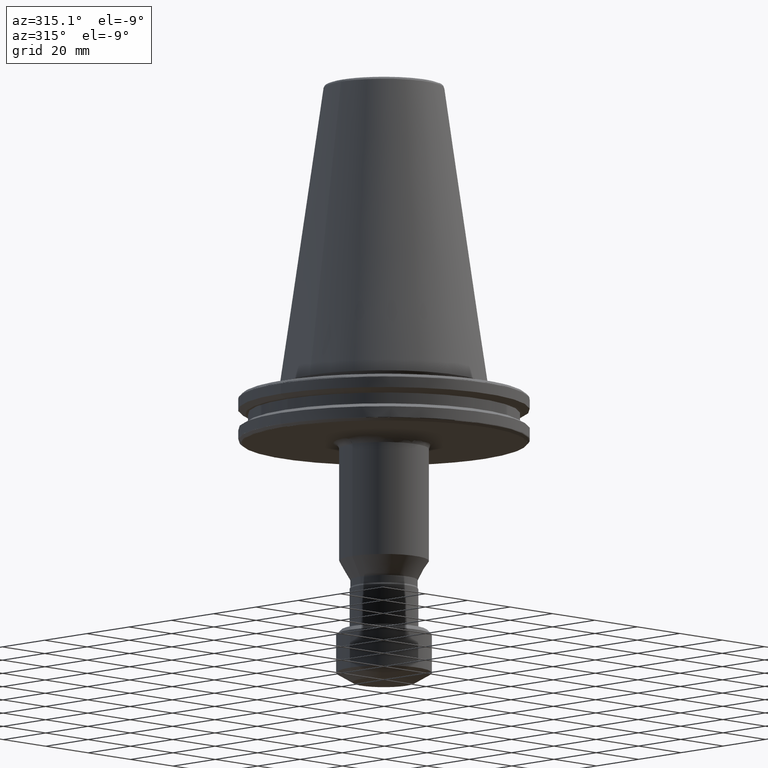
[diagram: clean part render]
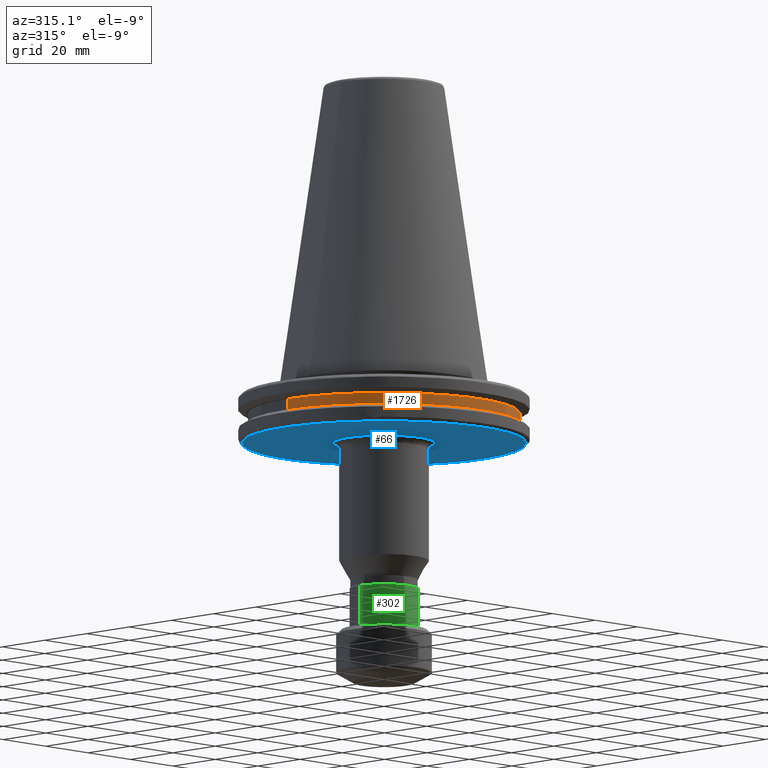
[diagram: same view with three faces highlighted in distinct colors, each labeled with its STEP entity id]
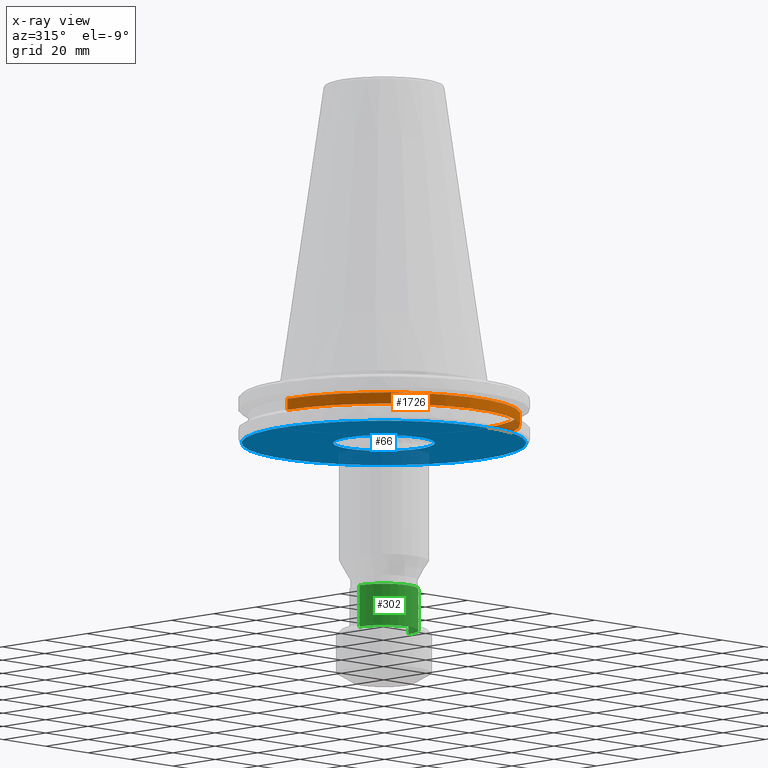
[diagram: x-ray of the same camera — body ghosted, the three highlighted faces saturated]
A machine part, auxiliary view with three faces highlighted in distinct colors.
The next image is the same camera in x-ray (body ghosted, the three faces saturated) — at least one of them is partly hidden behind the body in this view.
Their STEP definitions:

[orange] entity #1726 — the highlighted cylindrical surface (partial cylindrical patch) has radius 45.5 mm, axis along (0, 0, 1).
#36 = ORIENTED_EDGE ( 'NONE', *, *, #3107, .T. ) ;
#37 = DIRECTION ( 'NONE',  ( 0.0000000000000000000, 0.0000000000000000000, 1.000000000000000000 ) ) ;
#226 = DIRECTION ( 'NONE',  ( 1.000000000000000000, 0.0000000000000000000, 0.0000000000000000000 ) ) ;
#232 = CIRCLE ( 'NONE', #1699, 45.50000000000000000 ) ;
#445 = VECTOR ( 'NONE', #37, 1000.000000000000000 ) ;
#471 = AXIS2_PLACEMENT_3D ( 'NONE', #2727, #1133, #3239 ) ;
#617 = CARTESIAN_POINT ( 'NONE',  ( -45.50000000000000000, 5.572142936120457100E-015, -12.99999999999999800 ) ) ;
#725 = CARTESIAN_POINT ( 'NONE',  ( -45.50000000000000000, 5.572142936120457100E-015, -9.199999999999999300 ) ) ;
#772 = CARTESIAN_POINT ( 'NONE',  ( -45.50000000000000000, 5.572142936120457100E-015, 109.4760732604896600 ) ) ;
#858 = CARTESIAN_POINT ( 'NONE',  ( 45.50000000000000000, 0.0000000000000000000, 109.4760732604896600 ) ) ;
#1119 = DIRECTION ( 'NONE',  ( -0.0000000000000000000, -0.0000000000000000000, -1.000000000000000000 ) ) ;
#1133 = DIRECTION ( 'NONE',  ( 0.0000000000000000000, 0.0000000000000000000, 1.000000000000000000 ) ) ;
#1293 = DIRECTION ( 'NONE',  ( 0.0000000000000000000, 0.0000000000000000000, 1.000000000000000000 ) ) ;
#1339 = VERTEX_POINT ( 'NONE', #725 ) ;
#1577 = ORIENTED_EDGE ( 'NONE', *, *, #1692, .T. ) ;
#1692 = EDGE_CURVE ( 'NONE', #2887, #1339, #1875, .T. ) ;
#1693 = EDGE_CURVE ( 'NONE', #2616, #2887, #3279, .T. ) ;
#1699 = AXIS2_PLACEMENT_3D ( 'NONE', #3404, #1833, #226 ) ;
#1714 = CYLINDRICAL_SURFACE ( 'NONE', #471, 45.50000000000000000 ) ;
#1726 = ADVANCED_FACE ( 'NONE', ( #3188 ), #1714, .T. ) ;
#1833 = DIRECTION ( 'NONE',  ( 0.0000000000000000000, 0.0000000000000000000, 1.000000000000000000 ) ) ;
#1875 = CIRCLE ( 'NONE', #3056, 45.50000000000000000 ) ;
#1993 = LINE ( 'NONE', #772, #3125 ) ;
#2064 = ORIENTED_EDGE ( 'NONE', *, *, #2868, .F. ) ;
#2508 = ORIENTED_EDGE ( 'NONE', *, *, #1693, .T. ) ;
#2512 = CARTESIAN_POINT ( 'NONE',  ( 45.50000000000000000, 0.0000000000000000000, -12.99999999999999800 ) ) ;
#2616 = VERTEX_POINT ( 'NONE', #2512 ) ;
#2709 = CARTESIAN_POINT ( 'NONE',  ( 0.0000000000000000000, 0.0000000000000000000, -9.199999999999999300 ) ) ;
#2727 = CARTESIAN_POINT ( 'NONE',  ( 0.0000000000000000000, 0.0000000000000000000, 109.4760732604896600 ) ) ;
#2868 = EDGE_CURVE ( 'NONE', #3274, #1339, #1993, .T. ) ;
#2880 = CARTESIAN_POINT ( 'NONE',  ( 45.50000000000000000, 0.0000000000000000000, -9.199999999999999300 ) ) ;
#2887 = VERTEX_POINT ( 'NONE', #2880 ) ;
#2964 = DIRECTION ( 'NONE',  ( 1.000000000000000000, 0.0000000000000000000, 0.0000000000000000000 ) ) ;
#3056 = AXIS2_PLACEMENT_3D ( 'NONE', #2709, #1119, #2964 ) ;
#3107 = EDGE_CURVE ( 'NONE', #3274, #2616, #232, .T. ) ;
#3125 = VECTOR ( 'NONE', #1293, 1000.000000000000000 ) ;
#3140 = EDGE_LOOP ( 'NONE', ( #2064, #36, #2508, #1577 ) ) ;
#3188 = FACE_OUTER_BOUND ( 'NONE', #3140, .T. ) ;
#3239 = DIRECTION ( 'NONE',  ( 1.000000000000000000, 0.0000000000000000000, 0.0000000000000000000 ) ) ;
#3274 = VERTEX_POINT ( 'NONE', #617 ) ;
#3279 = LINE ( 'NONE', #858, #445 ) ;
#3404 = CARTESIAN_POINT ( 'NONE',  ( 0.0000000000000000000, 0.0000000000000000000, -12.99999999999999800 ) ) ;

[blue] entity #66 — the highlighted planar face has unit normal (0, 0, -1).
#1 = CARTESIAN_POINT ( 'NONE',  ( -43.50738066078827900, 19.27117675786805200, -19.10000000000001200 ) ) ;
#11 = CARTESIAN_POINT ( 'NONE',  ( -16.75628663802398300, -2.869557051015598800, -19.10000000000000100 ) ) ;
#13 = CARTESIAN_POINT ( 'NONE',  ( -37.72233470563285400, 29.00609245878207800, -19.10000000000000100 ) ) ;
#17 = CARTESIAN_POINT ( 'NONE',  ( -15.23929593936327500, -7.572712612707428000, -19.10000000000000500 ) ) ;
#22 = CARTESIAN_POINT ( 'NONE',  ( -24.81728438533785700, 40.60144016361300600, -19.10000000000000900 ) ) ;
#26 = CARTESIAN_POINT ( 'NONE',  ( -9.425089607255268100, -14.14825376422930100, -19.10000000000000100 ) ) ;
#28 = CARTESIAN_POINT ( 'NONE',  ( 47.58431457505076200, 0.0000000000000000000, -19.10000000000000500 ) ) ;
#45 = CARTESIAN_POINT ( 'NONE',  ( -3.566247131329177900, -16.62276056159859300, -19.10000000000000500 ) ) ;
#50 = CARTESIAN_POINT ( 'NONE',  ( -39.34331436821108200, -26.77251847610786200, -19.10000000000000900 ) ) ;
#62 = CARTESIAN_POINT ( 'NONE',  ( 3.029438918684569200, -16.72792623648391000, -19.10000000000000900 ) ) ;
#66 = ADVANCED_FACE ( 'NONE', ( #2723, #1291 ), #1438, .T. ) ;
#68 = CARTESIAN_POINT ( 'NONE',  ( -27.57030031731700600, -38.90942616199809800, -19.10000000000000500 ) ) ;
#72 = CARTESIAN_POINT ( 'NONE',  ( 8.878797069425010200, -14.49842495588012200, -19.10000000000000500 ) ) ;
#90 = AXIS2_PLACEMENT_3D ( 'NONE', #370, #2246, #647 ) ;
#133 = CARTESIAN_POINT ( 'NONE',  ( -9.182110065269718300, 14.30713178097664700, -19.10000000000001200 ) ) ;
#139 = CARTESIAN_POINT ( 'NONE',  ( -15.41372478594541600, 7.180910359805224600, -19.10000000000000900 ) ) ;
#140 = CARTESIAN_POINT ( 'NONE',  ( 46.47350782598347500, -10.35808886605157000, -19.10000000000000500 ) ) ;
#147 = CARTESIAN_POINT ( 'NONE',  ( -16.71027858106262800, 3.125317723918708400, -19.10000000000000100 ) ) ;
#149 = CARTESIAN_POINT ( 'NONE',  ( 42.38248318243193300, -21.63374689602388300, -19.10000000000000900 ) ) ;
#162 = ORIENTED_EDGE ( 'NONE', *, *, #1468, .F. ) ;
#164 = CARTESIAN_POINT ( 'NONE',  ( 28.74551016938736200, -37.93038276513787100, -19.10000000000000500 ) ) ;
#168 = CARTESIAN_POINT ( 'NONE',  ( 15.97840023185761600, 5.807325023635518900, -19.10000000000000900 ) ) ;
#171 = CARTESIAN_POINT ( 'NONE',  ( 20.41528033294995800, -42.98237818865658300, -19.10000000000000900 ) ) ;
#177 = CARTESIAN_POINT ( 'NONE',  ( 12.85040064147194400, 11.19117736271898000, -19.10000000000000900 ) ) ;
#187 = CARTESIAN_POINT ( 'NONE',  ( 6.390923916823732400, 15.75301338873084200, -19.10000000000000500 ) ) ;
#201 = CARTESIAN_POINT ( 'NONE',  ( -0.5197252359296659100, 17.00001621349948900, -19.10000000000000500 ) ) ;
#210 = CARTESIAN_POINT ( 'NONE',  ( 20.30816862367795000, 43.03308960635053600, -19.10000000000000500 ) ) ;
#213 = CARTESIAN_POINT ( 'NONE',  ( -6.129270536058141900, 15.85664712819512600, -19.10000000000000500 ) ) ;
#218 = CARTESIAN_POINT ( 'NONE',  ( -43.46452045540239300, -19.39265620129822000, -19.09999999999999800 ) ) ;
#219 = CARTESIAN_POINT ( 'NONE',  ( 32.45423464497587000, 34.79967915309470100, -19.10000000000000500 ) ) ;
#230 = CARTESIAN_POINT ( 'NONE',  ( -47.46455135935227100, -3.382873549468426300, -19.10000000000000900 ) ) ;
#231 = CARTESIAN_POINT ( 'NONE',  ( 42.90142996046747500, 20.62574051018165400, -19.10000000000000900 ) ) ;
#243 = CARTESIAN_POINT ( 'NONE',  ( 15.41372478594150100, -7.180910359809976400, -19.10000000000000100 ) ) ;
#248 = CARTESIAN_POINT ( 'NONE',  ( -46.85478944352901500, 8.300562471110195500, -19.10000000000000500 ) ) ;
#249 = CARTESIAN_POINT ( 'NONE',  ( 46.98556592418497500, 7.525599392336442200, -19.10000000000000100 ) ) ;
#260 = CARTESIAN_POINT ( 'NONE',  ( 16.71027858106262100, -3.125317723918680900, -19.10000000000000100 ) ) ;
#262 = CARTESIAN_POINT ( 'NONE',  ( -43.06388169947629800, 20.26603588022871000, -19.10000000000000100 ) ) ;
#268 = CARTESIAN_POINT ( 'NONE',  ( -16.72792424146346200, -3.029449701395665600, -19.10000000000000100 ) ) ;
#272 = CARTESIAN_POINT ( 'NONE',  ( -36.19195205103963500, 30.95738241492916700, -19.10000000000000900 ) ) ;
#278 = CARTESIAN_POINT ( 'NONE',  ( -14.49842495588400800, -8.878797069413817400, -19.10000000000000100 ) ) ;
#285 = CARTESIAN_POINT ( 'NONE',  ( -24.28919228006430200, 40.91842199131881600, -19.10000000000000900 ) ) ;
#298 = CARTESIAN_POINT ( 'NONE',  ( -8.821883244323116100, -14.54320516734942400, -19.10000000000000500 ) ) ;
#310 = CARTESIAN_POINT ( 'NONE',  ( -3.228799669474590000, -16.69059809660694800, -19.10000000000000100 ) ) ;
#320 = CARTESIAN_POINT ( 'NONE',  ( 3.635329554505266600, -16.61591811502067300, -19.10000000000000500 ) ) ;
#322 = EDGE_CURVE ( 'NONE', #2125, #2264, #1096, .T. ) ;
#331 = CARTESIAN_POINT ( 'NONE',  ( 9.182110065268240400, -14.30713178097820300, -19.10000000000000100 ) ) ;
#370 = CARTESIAN_POINT ( 'NONE',  ( 0.0000000000000000000, 0.0000000000000000000, -19.10000000000000500 ) ) ;
#382 = B_SPLINE_CURVE_WITH_KNOTS ( 'NONE', 3,
 ( #1130, #2726, #3236, #1658, #68, #1931 ),
 .UNSPECIFIED., .F., .F.,
 ( 4, 2, 4 ),
 ( 0.0000000000000000000, 0.5000000000000000000, 1.000000000000000000 ),
 .UNSPECIFIED. ) ;
#391 = CARTESIAN_POINT ( 'NONE',  ( -10.28458922963836600, 13.58694172186861400, -19.10000000000000500 ) ) ;
#401 = CARTESIAN_POINT ( 'NONE',  ( -15.71244586321104300, 6.490634399675370100, -19.10000000000000100 ) ) ;
#405 = CARTESIAN_POINT ( 'NONE',  ( 45.61501663366748000, -13.55419179612029600, -19.10000000000000100 ) ) ;
#414 = CARTESIAN_POINT ( 'NONE',  ( -16.99999999999998900, 1.039981274145734200, -19.09999999999999800 ) ) ;
#416 = CARTESIAN_POINT ( 'NONE',  ( 39.71226124066086500, -26.34633708789625900, -19.10000000000000900 ) ) ;
#425 = CARTESIAN_POINT ( 'NONE',  ( 27.36704069051609500, -38.92761599110558300, -19.10000000000000100 ) ) ;
#429 = CARTESIAN_POINT ( 'NONE',  ( 15.85664712819559500, 6.129270536055612300, -19.10000000000000100 ) ) ;
#432 = CARTESIAN_POINT ( 'NONE',  ( 18.14579602877767800, -44.05578048496933300, -19.10000000000000100 ) ) ;
#447 = CARTESIAN_POINT ( 'NONE',  ( 10.95514690495525300, 13.02276200926030600, -19.10000000000000500 ) ) ;
#460 = CARTESIAN_POINT ( 'NONE',  ( 6.289638318446941800, 15.79372029836359200, -19.10000000000000900 ) ) ;
#465 = CARTESIAN_POINT ( 'NONE',  ( 14.71542401573989700, 45.26810526765248700, -19.09999999999999800 ) ) ;
#469 = CARTESIAN_POINT ( 'NONE',  ( -2.196602693796269700, 16.86107325276852700, -19.10000000000000500 ) ) ;
#475 = CARTESIAN_POINT ( 'NONE',  ( -40.02661726375797700, -25.73250060629115800, -19.10000000000000100 ) ) ;
#477 = CARTESIAN_POINT ( 'NONE',  ( 23.16294830556954000, 41.59993702404469200, -19.10000000000000500 ) ) ;
#481 = CARTESIAN_POINT ( 'NONE',  ( -6.224235666763718200, 15.81961256450059500, -19.10000000000000100 ) ) ;
#485 = VERTEX_POINT ( 'NONE', #2481 ) ;
#494 = CARTESIAN_POINT ( 'NONE',  ( -44.66341859283797800, -16.42788878438595300, -19.10000000000000500 ) ) ;
#495 = CARTESIAN_POINT ( 'NONE',  ( 32.80683798251254800, 34.46745228559307600, -19.10000000000000500 ) ) ;
#507 = CARTESIAN_POINT ( 'NONE',  ( -47.59741484153538200, -0.6777149948083081000, -19.10000000000000500 ) ) ;
#509 = CARTESIAN_POINT ( 'NONE',  ( 44.54555233085104500, 16.75446385730817100, -19.10000000000000100 ) ) ;
#516 = CARTESIAN_POINT ( 'NONE',  ( 15.71244586320983500, -6.490634399676853400, -19.10000000000000900 ) ) ;
#520 = CARTESIAN_POINT ( 'NONE',  ( -46.82244676818312000, 8.481092150350010100, -19.10000000000000100 ) ) ;
#521 = CARTESIAN_POINT ( 'NONE',  ( 47.01629565795806100, 7.330514881585432200, -19.10000000000000500 ) ) ;
#531 = CARTESIAN_POINT ( 'NONE',  ( 16.99999999999999600, -1.039981274146589000, -19.10000000000000900 ) ) ;
#534 = CARTESIAN_POINT ( 'NONE',  ( -41.62449277400573100, 23.06696569450540900, -19.10000000000000100 ) ) ;
#544 = CARTESIAN_POINT ( 'NONE',  ( -16.61591811502702500, -3.635329554490970900, -19.10000000000000100 ) ) ;
#548 = VERTEX_POINT ( 'NONE', #3263 ) ;
#555 = CARTESIAN_POINT ( 'NONE',  ( -32.75192744826207300, 34.53355234439998600, -19.10000000000000900 ) ) ;
#561 = CARTESIAN_POINT ( 'NONE',  ( -14.30713178097942700, -9.182110065264701900, -19.10000000000000100 ) ) ;
#566 = CARTESIAN_POINT ( 'NONE',  ( -23.23964798956468400, 41.53466996820385800, -19.10000000000000100 ) ) ;
#574 = CARTESIAN_POINT ( 'NONE',  ( -7.180910359828097900, -15.41372478593432200, -19.10000000000000500 ) ) ;
#583 = CARTESIAN_POINT ( 'NONE',  ( -3.125312245169746400, -16.71027959509473200, -19.10000000000000100 ) ) ;
#600 = CARTESIAN_POINT ( 'NONE',  ( 5.353849595834401700, -16.13916466441866100, -19.10000000000000500 ) ) ;
#601 = DIRECTION ( 'NONE',  ( -0.0000000000000000000, -0.0000000000000000000, 1.000000000000000000 ) ) ;
#647 = DIRECTION ( 'NONE',  ( 1.000000000000000000, 0.0000000000000000000, 0.0000000000000000000 ) ) ;
#659 = EDGE_CURVE ( 'NONE', #2285, #1589, #2284, .T. ) ;
#672 = CARTESIAN_POINT ( 'NONE',  ( 10.28458922964753300, -13.58694172185755600, -19.10000000000001200 ) ) ;
#673 = CARTESIAN_POINT ( 'NONE',  ( -12.43563423889748200, 11.60602259952191100, -19.10000000000000100 ) ) ;
#674 = CARTESIAN_POINT ( 'NONE',  ( 47.51482365651813200, -3.034128784358036200, -19.10000000000000500 ) ) ;
#679 = CARTESIAN_POINT ( 'NONE',  ( -15.77985774725970300, 6.324345534787863000, -19.10000000000000100 ) ) ;
#681 = CARTESIAN_POINT ( 'NONE',  ( 45.38216414504925200, -14.30848230517228400, -19.10000000000000100 ) ) ;
#686 = AXIS2_PLACEMENT_3D ( 'NONE', #3286, #3293, #1459 ) ;
#690 = CARTESIAN_POINT ( 'NONE',  ( 36.10920679700881000, -31.03933632749681600, -19.10000000000000100 ) ) ;
#697 = CARTESIAN_POINT ( 'NONE',  ( 16.86105197255043800, 2.196717709406118300, -19.10000000000000500 ) ) ;
#704 = CARTESIAN_POINT ( 'NONE',  ( 27.03399514045383300, -39.15911966686261500, -19.10000000000000500 ) ) ;
#713 = CARTESIAN_POINT ( 'NONE',  ( 15.81961256450035300, 6.224235666763978400, -19.10000000000000100 ) ) ;
#715 = CARTESIAN_POINT ( 'NONE',  ( 13.55000000000004000, -45.61430141498812000, -19.10000000000000500 ) ) ;
#723 = CARTESIAN_POINT ( 'NONE',  ( 9.728261501595108400, 13.94273981248317700, -19.10000000000000100 ) ) ;
#731 = CARTESIAN_POINT ( 'NONE',  ( 4.965289126045984600, 16.27518783772485000, -19.10000000000000500 ) ) ;
#741 = CARTESIAN_POINT ( 'NONE',  ( 13.55000000000003800, 45.61430141498812000, -19.10000000000000500 ) ) ;
#749 = CARTESIAN_POINT ( 'NONE',  ( -2.869521108641413400, 16.75629328809212400, -19.10000000000000500 ) ) ;
#758 = CARTESIAN_POINT ( 'NONE',  ( -40.18598509483613400, -25.48248467048885100, -19.09999999999999800 ) ) ;
#759 = CARTESIAN_POINT ( 'NONE',  ( 25.98226908279735200, 39.86687285260243400, -19.10000000000000900 ) ) ;
#763 = CARTESIAN_POINT ( 'NONE',  ( -7.572712612743692300, 15.23929593934310000, -19.10000000000001200 ) ) ;
#769 = CARTESIAN_POINT ( 'NONE',  ( -45.06980572969310100, -15.26566562123094800, -19.10000000000000900 ) ) ;
#770 = CARTESIAN_POINT ( 'NONE',  ( 36.56395844828408300, 30.56583245044275500, -19.10000000000000900 ) ) ;
#777 = CARTESIAN_POINT ( 'NONE',  ( 12.43563423889750100, -11.60602259952283400, -19.10000000000000900 ) ) ;
#780 = CARTESIAN_POINT ( 'NONE',  ( -47.54727111532193400, 1.905664479381692400, -19.10000000000000500 ) ) ;
#782 = CARTESIAN_POINT ( 'NONE',  ( 45.10896982988794000, 15.14909382745818100, -19.10000000000000100 ) ) ;
#792 = CARTESIAN_POINT ( 'NONE',  ( 15.77985774725934900, -6.324345534788301700, -19.10000000000000100 ) ) ;
#796 = CARTESIAN_POINT ( 'NONE',  ( -46.02040231053878500, 12.24696722930733400, -19.10000000000000100 ) ) ;
#797 = CARTESIAN_POINT ( 'NONE',  ( 47.39900545896375700, 4.849328732738546100, -19.10000000000001200 ) ) ;
#812 = CARTESIAN_POINT ( 'NONE',  ( -30.00000000000000700, -36.93598507658064300, -19.10000000000000500 ) ) ;
#813 = CARTESIAN_POINT ( 'NONE',  ( -41.01970147035147100, 24.11775541779884300, -19.09999999999999800 ) ) ;
#817 = CARTESIAN_POINT ( 'NONE',  ( -16.13916466442699300, -5.353849595815638000, -19.10000000000000100 ) ) ;
#821 = CARTESIAN_POINT ( 'NONE',  ( -30.33579890459406100, 36.66664220711905400, -19.10000000000000500 ) ) ;
#826 = CARTESIAN_POINT ( 'NONE',  ( -13.58694172187694200, -10.28458922963193000, -19.10000000000000900 ) ) ;
#832 = CARTESIAN_POINT ( 'NONE',  ( -20.43954638168772700, 42.97566936964385300, -19.10000000000000500 ) ) ;
#843 = CARTESIAN_POINT ( 'NONE',  ( -6.490634399682520900, -15.71244586320758800, -19.10000000000000500 ) ) ;
#862 = CARTESIAN_POINT ( 'NONE',  ( -1.039450471878210000, -16.99996757300099000, -19.09999999999999800 ) ) ;
#872 = CARTESIAN_POINT ( 'NONE',  ( 6.032866341704763400, -15.89380501011270900, -19.10000000000000500 ) ) ;
#915 = CARTESIAN_POINT ( 'NONE',  ( -36.93598507658065000, -30.00000000000000000, -19.10000000000000500 ) ) ;
#935 = CARTESIAN_POINT ( 'NONE',  ( 47.58431457505076200, 0.0000000000000000000, -19.10000000000000500 ) ) ;
#948 = CARTESIAN_POINT ( 'NONE',  ( -13.64631823949578200, 10.14559024918019300, -19.10000000000000500 ) ) ;
#949 = CARTESIAN_POINT ( 'NONE',  ( 47.18039861107993000, -6.200159950546384900, -19.10000000000000500 ) ) ;
#954 = CARTESIAN_POINT ( 'NONE',  ( -16.00929423322481100, 5.745157968230116400, -19.10000000000000900 ) ) ;
#956 = CARTESIAN_POINT ( 'NONE',  ( 45.31099424278791300, -14.53228453996202400, -19.10000000000000500 ) ) ;
#966 = CARTESIAN_POINT ( 'NONE',  ( 33.74831642309442300, -33.54865932858725600, -19.10000000000000500 ) ) ;
#968 = VERTEX_POINT ( 'NONE', #28 ) ;
#969 = CARTESIAN_POINT ( 'NONE',  ( -19.00318548245974900, 43.62510207828989200, -19.09999999999999800 ) ) ;
#970 = CARTESIAN_POINT ( 'NONE',  ( 16.75628663802398700, 2.869557051019495200, -19.10000000000000500 ) ) ;
#973 = CARTESIAN_POINT ( 'NONE',  ( 25.85766165868116000, -39.96557434562789300, -19.10000000000000900 ) ) ;
#976 = CARTESIAN_POINT ( 'NONE',  ( 15.23929593935007500, 7.572712612736301800, -19.10000000000000900 ) ) ;
#986 = CARTESIAN_POINT ( 'NONE',  ( 9.425089607253593000, 14.14825376423097400, -19.09999999999999800 ) ) ;
#995 = B_SPLINE_CURVE_WITH_KNOTS ( 'NONE', 3,
 ( #935, #2524, #674, #2540, #949, #2795, #1213, #3054, #1466, #3320, #1739, #140, #2013, #405, #2282, #681, #2550, #956, #2800, #1223, #3064, #1473, #3327, #1751, #149, #2019, #416, #2295, #690, #2555, #966, #2808, #1230, #3075, #1485, #3333, #1762, #164, #2028, #425, #2311, #704, #2560, #973, #2824, #1238, #3081, #1496, #3345, #1770, #171, #2040, #432, #2316, #715 ),
 .UNSPECIFIED., .F., .F.,
 ( 4, 1, 1, 1, 1, 1, 2, 2, 1, 1, 1, 1, 2, 2, 1, 1, 1, 2, 2, 2, 1, 1, 1, 1, 2, 2, 1, 1, 1, 1, 2, 2, 1, 1, 1, 1, 1, 2, 2, 4 ),
 ( 0.0000000000000000000, 0.06250000000000170700, 0.09375000000000259500, 0.1093750000000030000, 0.1171875000000032200, 0.1210937500000032900, 0.1230468750000033300, 0.1250000000000033600, 0.1875000000000048800, 0.2187500000000055800, 0.2343750000000059400, 0.2421875000000060500, 0.2460937500000060800, 0.2500000000000061100, 0.3125000000000062200, 0.3437500000000062200, 0.3593750000000062700, 0.3671875000000062200, 0.3750000000000061100, 0.5000000000000033300, 0.5625000000000017800, 0.5937500000000011100, 0.6093750000000008900, 0.6171875000000008900, 0.6210937500000010000, 0.6250000000000011100, 0.6874999999999998900, 0.7187499999999994400, 0.7343749999999991100, 0.7421874999999990000, 0.7460937499999990000, 0.7499999999999988900, 0.8124999999999982200, 0.8437499999999980000, 0.8593749999999977800, 0.8671874999999978900, 0.8710937499999978900, 0.8730468749999980000, 0.8749999999999980000, 1.000000000000000000 ),
 .UNSPECIFIED. ) ;
#1003 = CARTESIAN_POINT ( 'NONE',  ( 3.566247131323481100, 16.62276056159971200, -19.10000000000000100 ) ) ;
#1004 = CARTESIAN_POINT ( 'NONE',  ( -16.99999999999998900, 0.0000000000000000000, -19.10000000000000500 ) ) ;
#1007 = CARTESIAN_POINT ( 'NONE',  ( 16.43872634132790400, 44.68369591768216500, -19.10000000000000100 ) ) ;
#1008 = EDGE_CURVE ( 'NONE', #2606, #485, #2881, .T. ) ;
#1011 = CARTESIAN_POINT ( 'NONE',  ( -3.029438918683408800, 16.72792623648390300, -19.09999999999999800 ) ) ;
#1015 = CARTESIAN_POINT ( 'NONE',  ( -40.76709873716008300, -24.56122508915836600, -19.09999999999999800 ) ) ;
#1016 = CARTESIAN_POINT ( 'NONE',  ( 26.63902506833021600, 39.42887053638094100, -19.10000000000000500 ) ) ;
#1019 = CARTESIAN_POINT ( 'NONE',  ( -9.061033282950363700, 14.38413214245038500, -19.09999999999999800 ) ) ;
#1027 = CARTESIAN_POINT ( 'NONE',  ( -45.84282519676454400, -12.90938794936728400, -19.10000000000000100 ) ) ;
#1028 = CARTESIAN_POINT ( 'NONE',  ( 40.03666779867885600, 25.77557849478000000, -19.10000000000000500 ) ) ;
#1041 = CARTESIAN_POINT ( 'NONE',  ( 13.64631823949580400, -10.14559024918140700, -19.10000000000000100 ) ) ;
#1046 = CARTESIAN_POINT ( 'NONE',  ( -47.51765271232140700, 2.520872981461752500, -19.10000000000000100 ) ) ;
#1047 = CARTESIAN_POINT ( 'NONE',  ( 45.23605185881285000, 14.76391406654777100, -19.10000000000000900 ) ) ;
#1055 = CARTESIAN_POINT ( 'NONE',  ( 16.00929423322335100, -5.745157968237549500, -19.10000000000000900 ) ) ;
#1058 = CARTESIAN_POINT ( 'NONE',  ( -44.71911495654299500, 16.31098149367877400, -19.10000000000000500 ) ) ;
#1059 = CARTESIAN_POINT ( 'NONE',  ( 47.58431457505076200, 0.0000000000000000000, -19.10000000000000500 ) ) ;
#1063 = CARTESIAN_POINT ( 'NONE',  ( -16.99999999999998900, 0.0000000000000000000, -19.10000000000000500 ) ) ;
#1066 = CARTESIAN_POINT ( 'NONE',  ( -40.83497819796480900, 24.42921624316422700, -19.10000000000000100 ) ) ;
#1067 = EDGE_LOOP ( 'NONE', ( #162, #3242, #1178, #2756, #2469, #2849, #2128 ) ) ;
#1075 = CARTESIAN_POINT ( 'NONE',  ( -15.89380501011531500, -6.032866341698904100, -19.10000000000000500 ) ) ;
#1085 = CARTESIAN_POINT ( 'NONE',  ( -29.36703163550929200, 37.44204003264795200, -19.10000000000000100 ) ) ;
#1096 = CIRCLE ( 'NONE', #2979, 47.58431457505076200 ) ;
#1098 = CARTESIAN_POINT ( 'NONE',  ( -11.60602259952788300, -12.43563423889056500, -19.10000000000001200 ) ) ;
#1099 = CARTESIAN_POINT ( 'NONE',  ( -37.53420115874772700, -29.26347665721688100, -19.10000000000000500 ) ) ;
#1104 = CARTESIAN_POINT ( 'NONE',  ( -19.28098364266295700, 43.50329362521162600, -19.10000000000000900 ) ) ;
#1109 = CARTESIAN_POINT ( 'NONE',  ( -6.324345534790001700, -15.77985774725867300, -19.10000000000000100 ) ) ;
#1123 = CARTESIAN_POINT ( 'NONE',  ( 1.296190649269235000, -16.96455228150933400, -19.10000000000000500 ) ) ;
#1130 = CARTESIAN_POINT ( 'NONE',  ( -13.55000000000003800, -45.61430141498812000, -19.10000000000000500 ) ) ;
#1138 = CARTESIAN_POINT ( 'NONE',  ( 6.193483027726407500, -15.83167458760899900, -19.10000000000000900 ) ) ;
#1178 = ORIENTED_EDGE ( 'NONE', *, *, #1432, .T. ) ;
#1209 = CARTESIAN_POINT ( 'NONE',  ( 11.19117736271889500, -12.85040064146824300, -19.10000000000000500 ) ) ;
#1210 = CARTESIAN_POINT ( 'NONE',  ( -14.06648694187844800, 9.546716948410505700, -19.10000000000000900 ) ) ;
#1213 = CARTESIAN_POINT ( 'NONE',  ( 47.06829021516595900, -6.989508869558489900, -19.10000000000000500 ) ) ;
#1217 = EDGE_CURVE ( 'NONE', #1589, #2285, #1407, .T. ) ;
#1221 = CARTESIAN_POINT ( 'NONE',  ( -16.51811642354632800, 4.035858417268812600, -19.10000000000000500 ) ) ;
#1223 = CARTESIAN_POINT ( 'NONE',  ( 44.21619689623131700, -17.66806265503116100, -19.10000000000000500 ) ) ;
#1230 = CARTESIAN_POINT ( 'NONE',  ( 33.16242677106277600, -34.12517462231188900, -19.10000000000000500 ) ) ;
#1233 = CARTESIAN_POINT ( 'NONE',  ( -17.15011055177526700, 44.42683968740623600, -19.10000000000000900 ) ) ;
#1234 = CARTESIAN_POINT ( 'NONE',  ( 16.72792424146346600, 3.029449701396838400, -19.10000000000001200 ) ) ;
#1238 = CARTESIAN_POINT ( 'NONE',  ( 22.32197853627175000, -42.03222146237897100, -19.10000000000000900 ) ) ;
#1249 = CARTESIAN_POINT ( 'NONE',  ( 14.49842495587823200, 8.878797069426442000, -19.10000000000000100 ) ) ;
#1260 = CARTESIAN_POINT ( 'NONE',  ( 8.821883244308054400, 14.54320516735693900, -19.10000000000000500 ) ) ;
#1267 = CARTESIAN_POINT ( 'NONE',  ( 3.228799669472806900, 16.69059809660729200, -19.10000000000000500 ) ) ;
#1273 = CARTESIAN_POINT ( 'NONE',  ( 19.37845221091519900, 43.46156447277313400, -19.10000000000000100 ) ) ;
#1277 = CARTESIAN_POINT ( 'NONE',  ( -3.635329554514931300, 16.61591811502073700, -19.10000000000000900 ) ) ;
#1288 = CARTESIAN_POINT ( 'NONE',  ( -42.29725858589355900, -21.80883355805505600, -19.10000000000000100 ) ) ;
#1289 = CARTESIAN_POINT ( 'NONE',  ( 26.83329560689306700, 39.29691769202159400, -19.10000000000000100 ) ) ;
#1291 = FACE_BOUND ( 'NONE', #3068, .T. ) ;
#1301 = CARTESIAN_POINT ( 'NONE',  ( -46.90680541811535400, -8.062666715551099400, -19.10000000000000500 ) ) ;
#1302 = CARTESIAN_POINT ( 'NONE',  ( 41.76982192490442700, 22.79788105289732400, -19.10000000000000900 ) ) ;
#1309 = CARTESIAN_POINT ( 'NONE',  ( 14.06648694187845500, -9.546716948410930200, -19.10000000000000900 ) ) ;
#1311 = CARTESIAN_POINT ( 'NONE',  ( -47.44736947908393900, 3.735930615247417200, -19.10000000000000500 ) ) ;
#1312 = CARTESIAN_POINT ( 'NONE',  ( 45.67414891459476700, 13.40663716817661600, -19.10000000000000500 ) ) ;
#1321 = CARTESIAN_POINT ( 'NONE',  ( 16.51811642354442000, -4.035858417278582500, -19.10000000000000900 ) ) ;
#1324 = CARTESIAN_POINT ( 'NONE',  ( -43.79157994117810700, 18.61891461367003600, -19.10000000000000500 ) ) ;
#1331 = CARTESIAN_POINT ( 'NONE',  ( -16.96452390788521200, -1.296344003382593000, -19.10000000000000900 ) ) ;
#1341 = CARTESIAN_POINT ( 'NONE',  ( -39.46301787722399700, 26.62035680921577800, -19.10000000000000100 ) ) ;
#1347 = CARTESIAN_POINT ( 'NONE',  ( -15.83167458760978400, -6.193483027724648900, -19.10000000000000100 ) ) ;
#1352 = CARTESIAN_POINT ( 'NONE',  ( -28.19223015307509800, 38.34628826504852100, -19.10000000000000100 ) ) ;
#1353 = CARTESIAN_POINT ( 'NONE',  ( -13.55000000000003800, -45.61430141498812000, -19.10000000000000500 ) ) ;
#1358 = CARTESIAN_POINT ( 'NONE',  ( -10.14559024918803600, -13.64631823948669400, -19.10000000000000500 ) ) ;
#1369 = CARTESIAN_POINT ( 'NONE',  ( -5.745157968237750300, -16.00929423322327200, -19.10000000000001200 ) ) ;
#1372 = CARTESIAN_POINT ( 'NONE',  ( -36.93598507658065000, -30.00000000000000000, -19.10000000000000500 ) ) ;
#1383 = CARTESIAN_POINT ( 'NONE',  ( 2.645442648325253600, -16.79380762804338200, -19.10000000000000500 ) ) ;
#1394 = CARTESIAN_POINT ( 'NONE',  ( 6.791600395155689400, -15.59501797503909300, -19.10000000000000500 ) ) ;
#1407 = B_SPLINE_CURVE_WITH_KNOTS ( 'NONE', 3,
 ( #1758, #3330, #2309, #697, #2558, #970, #2819, #1234, #3079, #1493, #3339, #1767, #168, #2036, #429, #2313, #713, #2566, #976, #2830, #1249, #3084, #1501, #3355, #1776, #177, #2048, #447, #2321, #723, #2585, #986, #2838, #1260, #3098, #1510, #3362, #1796, #187, #2056, #460, #2335, #731, #2592, #1003, #2850, #1267, #3108, #1527, #3372, #1803, #201, #2065, #469, #2344, #749, #2602, #1011, #2860, #1277, #3113, #1540, #3385, #1812, #213, #2085, #481, #2353, #763, #2617, #2613, #1019, #133, #1999, #391, #2275, #673, #2539, #948, #2793, #1210, #3053, #1463, #3318, #1737, #139, #2011, #401, #2280, #679, #2548, #954, #2798, #1221, #3061, #1471, #3325, #1749, #147, #2017, #414, #2291 ),
 .UNSPECIFIED., .F., .F.,
 ( 4, 1, 1, 1, 1, 2, 2, 1, 1, 1, 1, 2, 2, 1, 1, 1, 2, 2, 2, 1, 1, 1, 2, 2, 1, 1, 1, 1, 2, 2, 1, 1, 1, 1, 2, 2, 2, 1, 1, 1, 1, 2, 2, 1, 1, 1, 1, 2, 2, 1, 1, 1, 2, 2, 2, 1, 1, 1, 2, 2, 1, 1, 1, 1, 2, 2, 1, 1, 1, 1, 2, 2, 4 ),
 ( 0.0000000000000000000, 0.03124999999999921600, 0.04687499999999882000, 0.05468749999999862600, 0.05859374999999851500, 0.06054687499999847300, 0.06249999999999843200, 0.09374999999999740500, 0.1093749999999968800, 0.1171874999999966100, 0.1210937499999964600, 0.1230468749999964200, 0.1249999999999963600, 0.1562499999999952800, 0.1718749999999947800, 0.1796874999999944800, 0.1835937499999943700, 0.1874999999999942800, 0.2499999999999922300, 0.2812499999999912300, 0.2968749999999907300, 0.3046874999999904000, 0.3085937499999903400, 0.3124999999999902300, 0.3437499999999893400, 0.3593749999999889000, 0.3671874999999886800, 0.3710937499999885100, 0.3730468749999885100, 0.3749999999999885600, 0.4062499999999886200, 0.4218749999999887300, 0.4296874999999887900, 0.4335937499999887900, 0.4355468749999887900, 0.4374999999999887900, 0.4999999999999894500, 0.5312499999999897900, 0.5468749999999899000, 0.5546874999999901200, 0.5585937499999901200, 0.5605468749999901200, 0.5624999999999902300, 0.5937499999999911200, 0.6093749999999915600, 0.6171874999999919000, 0.6210937499999920100, 0.6230468749999920100, 0.6249999999999921200, 0.6562499999999927800, 0.6718749999999930100, 0.6796874999999931200, 0.6835937499999933400, 0.6874999999999934500, 0.7499999999999943400, 0.7812499999999948900, 0.7968749999999952300, 0.8046874999999953400, 0.8085937499999954500, 0.8124999999999955600, 0.8437499999999966700, 0.8593749999999972200, 0.8671874999999974500, 0.8710937499999975600, 0.8730468749999976700, 0.8749999999999976700, 0.9062499999999980000, 0.9218749999999982200, 0.9296874999999983300, 0.9335937499999983300, 0.9355468749999984500, 0.9374999999999984500, 1.000000000000000000 ),
 .UNSPECIFIED. ) ;
#1432 = EDGE_CURVE ( 'NONE', #968, #2264, #995, .T. ) ;
#1438 = PLANE ( 'NONE',  #686 ) ;
#1459 = DIRECTION ( 'NONE',  ( -1.000000000000000000, 0.0000000000000000000, -0.0000000000000000000 ) ) ;
#1463 = CARTESIAN_POINT ( 'NONE',  ( -14.18963850613696700, 9.362651127952633000, -19.10000000000000900 ) ) ;
#1466 = CARTESIAN_POINT ( 'NONE',  ( 47.03992380506181100, -7.177322297444237400, -19.09999999999999800 ) ) ;
#1468 = EDGE_CURVE ( 'NONE', #548, #485, #2904, .T. ) ;
#1471 = CARTESIAN_POINT ( 'NONE',  ( -16.67087759191220500, 3.330217505461315200, -19.10000000000000500 ) ) ;
#1473 = CARTESIAN_POINT ( 'NONE',  ( 42.81655896322946800, -20.76531420083256700, -19.10000000000000500 ) ) ;
#1485 = CARTESIAN_POINT ( 'NONE',  ( 32.98419360930078200, -34.29747021916278300, -19.10000000000000900 ) ) ;
#1490 = CARTESIAN_POINT ( 'NONE',  ( -13.54999999999999500, 45.61430141498812000, -19.10000000000000500 ) ) ;
#1493 = CARTESIAN_POINT ( 'NONE',  ( 16.61591811502268400, 3.635329554504416600, -19.10000000000000900 ) ) ;
#1496 = CARTESIAN_POINT ( 'NONE',  ( 20.84251516370364900, -42.77734476561271700, -19.10000000000000900 ) ) ;
#1501 = CARTESIAN_POINT ( 'NONE',  ( 14.30713178097761000, 9.182110065268696900, -19.10000000000000100 ) ) ;
#1510 = CARTESIAN_POINT ( 'NONE',  ( 7.180910359808337700, 15.41372478594418300, -19.10000000000000900 ) ) ;
#1527 = CARTESIAN_POINT ( 'NONE',  ( 3.125312245169780100, 16.71027959509473600, -19.10000000000000500 ) ) ;
#1536 = CARTESIAN_POINT ( 'NONE',  ( 20.10319798185777200, 43.12932423443057700, -19.10000000000000500 ) ) ;
#1540 = CARTESIAN_POINT ( 'NONE',  ( -5.353849595847092000, 16.13916466441872900, -19.10000000000000100 ) ) ;
#1541 = CARTESIAN_POINT ( 'NONE',  ( 0.0000000000000000000, 0.0000000000000000000, -19.10000000000000500 ) ) ;
#1544 = CARTESIAN_POINT ( 'NONE',  ( -42.83533062591823200, -20.72236678755074700, -19.10000000000000100 ) ) ;
#1545 = CARTESIAN_POINT ( 'NONE',  ( 29.52749904803963000, 37.35450850856265200, -19.10000000000000500 ) ) ;
#1555 = CARTESIAN_POINT ( 'NONE',  ( -47.33918203672661900, -4.868797594627507900, -19.10000000000000500 ) ) ;
#1557 = CARTESIAN_POINT ( 'NONE',  ( 42.15563262230364200, 22.07208034063000200, -19.10000000000000100 ) ) ;
#1562 = AXIS2_PLACEMENT_3D ( 'NONE', #1541, #3389, #1814 ) ;
#1569 = CARTESIAN_POINT ( 'NONE',  ( 14.18963850613733500, -9.362651127952174700, -19.10000000000000100 ) ) ;
#1575 = CARTESIAN_POINT ( 'NONE',  ( -47.09094735396303100, 6.864830031606941500, -19.10000000000000500 ) ) ;
#1576 = CARTESIAN_POINT ( 'NONE',  ( 46.64842286615405000, 9.428839320811436100, -19.10000000000000500 ) ) ;
#1589 = VERTEX_POINT ( 'NONE', #3426 ) ;
#1590 = CARTESIAN_POINT ( 'NONE',  ( 16.67087759191159800, -3.330217505464369700, -19.10000000000000500 ) ) ;
#1593 = CARTESIAN_POINT ( 'NONE',  ( -43.55528312423701500, 19.16266601030203300, -19.09999999999999800 ) ) ;
#1599 = CARTESIAN_POINT ( 'NONE',  ( -16.79379521458283600, -2.645509740749849100, -19.10000000000000100 ) ) ;
#1602 = CARTESIAN_POINT ( 'NONE',  ( -38.02059330652419100, 28.61405399316008400, -19.10000000000000900 ) ) ;
#1607 = CARTESIAN_POINT ( 'NONE',  ( -15.59501797504416500, -6.791600395141060200, -19.10000000000000900 ) ) ;
#1612 = CARTESIAN_POINT ( 'NONE',  ( -25.55023536420016200, 40.14825000635373400, -19.10000000000000500 ) ) ;
#1613 = ORIENTED_EDGE ( 'NONE', *, *, #659, .T. ) ;
#1623 = CARTESIAN_POINT ( 'NONE',  ( -9.546716948413262600, -14.06648694187525600, -19.10000000000000500 ) ) ;
#1641 = CARTESIAN_POINT ( 'NONE',  ( -4.035858417278844500, -16.51811642354431700, -19.10000000000000900 ) ) ;
#1644 = CARTESIAN_POINT ( 'NONE',  ( -38.39703445878652100, -28.13385998762162300, -19.10000000000000900 ) ) ;
#1652 = CARTESIAN_POINT ( 'NONE',  ( 2.965481552295661200, -16.73938395791544700, -19.10000000000000500 ) ) ;
#1658 = CARTESIAN_POINT ( 'NONE',  ( -24.97134317639638800, -40.62632225824804500, -19.10000000000000500 ) ) ;
#1662 = CARTESIAN_POINT ( 'NONE',  ( 8.449231957581822900, -14.75665408570736900, -19.10000000000000500 ) ) ;
#1737 = CARTESIAN_POINT ( 'NONE',  ( -14.97610095325651600, 8.080751853749935900, -19.10000000000000900 ) ) ;
#1739 = CARTESIAN_POINT ( 'NONE',  ( 46.83576360695571600, -8.501588316274563800, -19.10000000000000500 ) ) ;
#1749 = CARTESIAN_POINT ( 'NONE',  ( -16.70354485979861900, 3.161129493914226300, -19.10000000000000100 ) ) ;
#1751 = CARTESIAN_POINT ( 'NONE',  ( 42.45501299877800200, -21.49105359665808400, -19.10000000000000500 ) ) ;
#1758 = CARTESIAN_POINT ( 'NONE',  ( 16.99999999999998900, 2.081899558550499900E-015, -19.10000000000000500 ) ) ;
#1762 = CARTESIAN_POINT ( 'NONE',  ( 30.53220719716824000, -36.53788278294039300, -19.10000000000000100 ) ) ;
#1767 = CARTESIAN_POINT ( 'NONE',  ( 16.13916466442129800, 5.353849595833282600, -19.10000000000000900 ) ) ;
#1770 = CARTESIAN_POINT ( 'NONE',  ( 20.48661267979684600, -42.94842543565248900, -19.10000000000000100 ) ) ;
#1776 = CARTESIAN_POINT ( 'NONE',  ( 13.58694172185783500, 10.28458922965103800, -19.10000000000001200 ) ) ;
#1796 = CARTESIAN_POINT ( 'NONE',  ( 6.490634399676348000, 15.71244586321066400, -19.10000000000000500 ) ) ;
#1803 = CARTESIAN_POINT ( 'NONE',  ( 1.039450471859331800, 16.99996757300099800, -19.10000000000000500 ) ) ;
#1808 = EDGE_CURVE ( 'NONE', #2606, #3424, #2425, .T. ) ;
#1809 = CARTESIAN_POINT ( 'NONE',  ( 20.27515829117931600, 43.04865088728034600, -19.10000000000000500 ) ) ;
#1812 = CARTESIAN_POINT ( 'NONE',  ( -6.032866341708735400, 15.89380501011273800, -19.10000000000000100 ) ) ;
#1814 = DIRECTION ( 'NONE',  ( 1.000000000000000000, 0.0000000000000000000, 0.0000000000000000000 ) ) ;
#1820 = CARTESIAN_POINT ( 'NONE',  ( -42.99178721463651000, -20.39579081023707400, -19.09999999999999800 ) ) ;
#1821 = CARTESIAN_POINT ( 'NONE',  ( 32.09796523347117900, 35.13085002077772100, -19.10000000000000500 ) ) ;
#1836 = CARTESIAN_POINT ( 'NONE',  ( -47.44611172679490400, -3.632546062406335300, -19.10000000000000500 ) ) ;
#1837 = CARTESIAN_POINT ( 'NONE',  ( 42.27004183452240200, 21.85216361823345800, -19.10000000000000500 ) ) ;
#1845 = CARTESIAN_POINT ( 'NONE',  ( 14.97610095325129400, -8.080751853756275700, -19.10000000000000500 ) ) ;
#1847 = CARTESIAN_POINT ( 'NONE',  ( -46.88642313584200100, 8.121342992147001300, -19.10000000000000500 ) ) ;
#1848 = CARTESIAN_POINT ( 'NONE',  ( 46.94140912373022400, 7.798446834090934300, -19.10000000000000500 ) ) ;
#1855 = CARTESIAN_POINT ( 'NONE',  ( 16.70354485979843400, -3.161129493915139300, -19.10000000000000500 ) ) ;
#1858 = CARTESIAN_POINT ( 'NONE',  ( -43.48387235241678900, 19.32416758564065500, -19.10000000000000500 ) ) ;
#1864 = CARTESIAN_POINT ( 'NONE',  ( -16.73938006287552900, -2.965502604255420200, -19.09999999999999800 ) ) ;
#1871 = CARTESIAN_POINT ( 'NONE',  ( -37.57277125777906700, 29.19957678200971400, -19.09999999999999800 ) ) ;
#1883 = CARTESIAN_POINT ( 'NONE',  ( -14.75665408571402000, -8.449231957562615100, -19.10000000000000500 ) ) ;
#1890 = CARTESIAN_POINT ( 'NONE',  ( -24.50075070041846800, 40.79210399629386100, -19.10000000000000500 ) ) ;
#1898 = CARTESIAN_POINT ( 'NONE',  ( -9.362651127950458700, -14.18963850613801700, -19.10000000000000500 ) ) ;
#1910 = CARTESIAN_POINT ( 'NONE',  ( -3.330217505464451800, -16.67087759191157300, -19.10000000000000500 ) ) ;
#1922 = CARTESIAN_POINT ( 'NONE',  ( 3.059499537037781500, -16.72245833483557200, -19.10000000000000500 ) ) ;
#1931 = CARTESIAN_POINT ( 'NONE',  ( -30.00000000000000700, -36.93598507658064300, -19.10000000000000500 ) ) ;
#1936 = CARTESIAN_POINT ( 'NONE',  ( 9.061033282947558800, -14.38413214245336700, -19.10000000000000500 ) ) ;
#1999 = CARTESIAN_POINT ( 'NONE',  ( -9.241189343666729200, 14.26904756377009800, -19.10000000000000900 ) ) ;
#2011 = CARTESIAN_POINT ( 'NONE',  ( -15.61568138957497700, 6.722192561592113900, -19.10000000000000500 ) ) ;
#2013 = CARTESIAN_POINT ( 'NONE',  ( 45.92256546687897200, -12.49385015581558100, -19.10000000000000500 ) ) ;
#2017 = CARTESIAN_POINT ( 'NONE',  ( -16.90539708769390600, 2.071105237814586000, -19.10000000000000100 ) ) ;
#2019 = CARTESIAN_POINT ( 'NONE',  ( 41.10236839391540500, -24.12040806553541100, -19.10000000000000500 ) ) ;
#2028 = CARTESIAN_POINT ( 'NONE',  ( 27.83019210804798900, -38.59969460727635500, -19.10000000000000100 ) ) ;
#2036 = CARTESIAN_POINT ( 'NONE',  ( 15.89380501011353900, 6.032866341704418800, -19.10000000000000500 ) ) ;
#2040 = CARTESIAN_POINT ( 'NONE',  ( 20.37821948653813900, -42.99996010883744200, -19.10000000000000500 ) ) ;
#2043 = EDGE_CURVE ( 'NONE', #548, #968, #2393, .T. ) ;
#2048 = CARTESIAN_POINT ( 'NONE',  ( 11.60602259952098000, 12.43563423889746400, -19.10000000000000500 ) ) ;
#2056 = CARTESIAN_POINT ( 'NONE',  ( 6.324345534788158800, 15.77985774725960000, -19.10000000000000500 ) ) ;
#2065 = CARTESIAN_POINT ( 'NONE',  ( -1.296190649252728900, 16.96455228150933400, -19.10000000000000900 ) ) ;
#2077 = CARTESIAN_POINT ( 'NONE',  ( -39.80136458776819100, -26.08098387110446800, -19.10000000000000500 ) ) ;
#2078 = CARTESIAN_POINT ( 'NONE',  ( 21.48646288104771800, 42.47584807168517800, -19.10000000000000500 ) ) ;
#2085 = CARTESIAN_POINT ( 'NONE',  ( -6.193483027727597600, 15.83167458760899700, -19.10000000000000100 ) ) ;
#2093 = CARTESIAN_POINT ( 'NONE',  ( -44.05225042116134700, -18.03808220016556500, -19.10000000000000500 ) ) ;
#2094 = CARTESIAN_POINT ( 'NONE',  ( 32.69070567706877000, 34.57761234897954900, -19.10000000000000100 ) ) ;
#2104 = CARTESIAN_POINT ( 'NONE',  ( -47.54579427354603600, -2.153395367422849600, -19.10000000000001200 ) ) ;
#2105 = CARTESIAN_POINT ( 'NONE',  ( 43.71947824461587800, 18.86371587483209900, -19.10000000000000500 ) ) ;
#2113 = CARTESIAN_POINT ( 'NONE',  ( 15.61568138957270200, -6.722192561594882300, -19.10000000000000900 ) ) ;
#2117 = CARTESIAN_POINT ( 'NONE',  ( -46.83347022514248400, 8.420015231129218200, -19.09999999999999800 ) ) ;
#2118 = CARTESIAN_POINT ( 'NONE',  ( 47.00406100007095500, 7.408562343362993000, -19.09999999999999800 ) ) ;
#2125 = VERTEX_POINT ( 'NONE', #1353 ) ;
#2128 = ORIENTED_EDGE ( 'NONE', *, *, #1008, .T. ) ;
#2134 = CARTESIAN_POINT ( 'NONE',  ( 16.90539708769391000, -2.071105237815439500, -19.10000000000000900 ) ) ;
#2139 = CARTESIAN_POINT ( 'NONE',  ( -42.43145287609960500, 21.57528657182425700, -19.10000000000000900 ) ) ;
#2146 = CARTESIAN_POINT ( 'NONE',  ( -16.72245833483517400, -3.059499537038676400, -19.10000000000000100 ) ) ;
#2149 = CARTESIAN_POINT ( 'NONE',  ( -34.87112413051014700, 32.43790271240617800, -19.10000000000000500 ) ) ;
#2154 = CARTESIAN_POINT ( 'NONE',  ( -14.38413214245570700, -9.061033282940812200, -19.10000000000000100 ) ) ;
#2162 = CARTESIAN_POINT ( 'NONE',  ( -24.18147765466498100, 40.98216354344989300, -19.10000000000000900 ) ) ;
#2168 = CARTESIAN_POINT ( 'NONE',  ( -8.080751853780444800, -14.97610095324172600, -19.10000000000000500 ) ) ;
#2186 = CARTESIAN_POINT ( 'NONE',  ( -3.161129493915164200, -16.70354485979842700, -19.10000000000000100 ) ) ;
#2194 = CARTESIAN_POINT ( 'NONE',  ( 4.437327573572546600, -16.42698948584730100, -19.10000000000000900 ) ) ;
#2195 = CARTESIAN_POINT ( 'NONE',  ( 0.0000000000000000000, 0.0000000000000000000, -19.10000000000000500 ) ) ;
#2202 = CARTESIAN_POINT ( 'NONE',  ( 9.241189343666153600, -14.26904756377078200, -19.09999999999999800 ) ) ;
#2233 = EDGE_CURVE ( 'NONE', #2125, #3424, #382, .T. ) ;
#2246 = DIRECTION ( 'NONE',  ( -0.0000000000000000000, -0.0000000000000000000, 1.000000000000000000 ) ) ;
#2264 = VERTEX_POINT ( 'NONE', #2314 ) ;
#2275 = CARTESIAN_POINT ( 'NONE',  ( -11.19117736271893200, 12.85040064147009900, -19.10000000000000900 ) ) ;
#2280 = CARTESIAN_POINT ( 'NONE',  ( -15.75301338873106800, 6.390923916823159500, -19.10000000000000100 ) ) ;
#2282 = CARTESIAN_POINT ( 'NONE',  ( 45.45322280364696600, -14.08247786512834000, -19.10000000000000500 ) ) ;
#2284 = B_SPLINE_CURVE_WITH_KNOTS ( 'NONE', 3,
 ( #1063, #2913, #1331, #3169, #1599, #11, #1864, #268, #2146, #544, #2408, #817, #2677, #1075, #2923, #1347, #3184, #1607, #17, #1883, #278, #2154, #561, #2422, #826, #2686, #1098, #2934, #1358, #3205, #1623, #26, #1898, #298, #2168, #574, #2439, #843, #2699, #1109, #2953, #1369, #3219, #1641, #45, #1910, #310, #2186, #583, #2450, #862, #2713, #1123, #2967, #1383, #3227, #1652, #62, #1922, #320, #2194, #600, #2460, #872, #2731, #1138, #2973, #1394, #3244, #1662, #72, #1936, #331, #2202, #672, #1209, #777, #2637, #1041, #2886, #1309, #3147, #1569, #3413, #1845, #243, #2113, #516, #2388, #792, #2650, #1055, #2906, #1321, #3161, #1590, #3427, #1855, #260, #2134, #531, #2399 ),
 .UNSPECIFIED., .F., .F.,
 ( 4, 1, 1, 1, 1, 2, 2, 1, 1, 1, 1, 2, 2, 1, 1, 1, 2, 2, 2, 1, 1, 1, 2, 2, 1, 1, 1, 1, 2, 2, 1, 1, 1, 1, 2, 2, 2, 1, 1, 1, 1, 2, 2, 1, 1, 1, 1, 2, 2, 1, 1, 1, 2, 2, 2, 1, 1, 1, 2, 2, 1, 1, 1, 1, 2, 2, 1, 1, 1, 1, 2, 2, 4 ),
 ( 0.0000000000000000000, 0.03125000000000160300, 0.04687500000000240100, 0.05468750000000280300, 0.05859375000000301800, 0.06054687500000311600, 0.06250000000000320600, 0.09375000000000455200, 0.1093750000000052300, 0.1171875000000056100, 0.1210937500000057700, 0.1230468750000058100, 0.1250000000000058600, 0.1562500000000058300, 0.1718750000000058800, 0.1796875000000059700, 0.1835937500000059400, 0.1875000000000059100, 0.2500000000000053300, 0.2812500000000050500, 0.2968750000000048300, 0.3046875000000048300, 0.3085937500000048300, 0.3125000000000048800, 0.3437500000000048300, 0.3593750000000047700, 0.3671875000000047700, 0.3710937500000048300, 0.3730468750000048300, 0.3750000000000047700, 0.4062500000000037700, 0.4218750000000032800, 0.4296875000000030000, 0.4335937500000028900, 0.4355468750000027800, 0.4375000000000027200, 0.5000000000000014400, 0.5312500000000007800, 0.5468750000000005600, 0.5546875000000003300, 0.5585937500000003300, 0.5605468750000003300, 0.5625000000000003300, 0.5937499999999997800, 0.6093749999999995600, 0.6171874999999993300, 0.6210937499999992200, 0.6230468749999991100, 0.6249999999999990000, 0.6562499999999980000, 0.6718749999999974500, 0.6796874999999972200, 0.6835937499999971100, 0.6874999999999970000, 0.7499999999999964500, 0.7812499999999963400, 0.7968749999999962300, 0.8046874999999962300, 0.8085937499999962300, 0.8124999999999961100, 0.8437499999999955600, 0.8593749999999952300, 0.8671874999999951200, 0.8710937499999950000, 0.8730468749999950000, 0.8749999999999950000, 0.9062499999999963400, 0.9218749999999968900, 0.9296874999999972200, 0.9335937499999973400, 0.9355468749999974500, 0.9374999999999975600, 1.000000000000000000 ),
 .UNSPECIFIED. ) ;
#2285 = VERTEX_POINT ( 'NONE', #1004 ) ;
#2291 = CARTESIAN_POINT ( 'NONE',  ( -16.99999999999998900, 0.0000000000000000000, -19.10000000000000500 ) ) ;
#2295 = CARTESIAN_POINT ( 'NONE',  ( 37.35106965269457600, -29.51098510200261800, -19.10000000000000500 ) ) ;
#2309 = CARTESIAN_POINT ( 'NONE',  ( 16.96452390788522600, 1.296344003399192400, -19.10000000000001600 ) ) ;
#2311 = CARTESIAN_POINT ( 'NONE',  ( 27.16737028581766100, -39.06671061190950700, -19.10000000000000500 ) ) ;
#2313 = CARTESIAN_POINT ( 'NONE',  ( 15.83167458760924600, 6.193483027726302700, -19.10000000000000500 ) ) ;
#2314 = CARTESIAN_POINT ( 'NONE',  ( 13.55000000000004000, -45.61430141498812000, -19.10000000000000500 ) ) ;
#2316 = CARTESIAN_POINT ( 'NONE',  ( 15.88117119202270200, -44.92181312355221900, -19.10000000000000500 ) ) ;
#2321 = CARTESIAN_POINT ( 'NONE',  ( 10.14559024917898500, 13.64631823949575900, -19.10000000000000900 ) ) ;
#2326 = ORIENTED_EDGE ( 'NONE', *, *, #1217, .T. ) ;
#2335 = CARTESIAN_POINT ( 'NONE',  ( 5.745157968230313500, 16.00929423322472900, -19.10000000000001200 ) ) ;
#2344 = CARTESIAN_POINT ( 'NONE',  ( -2.645442648318032200, 16.79380762804338500, -19.10000000000000500 ) ) ;
#2350 = CARTESIAN_POINT ( 'NONE',  ( -40.12234574622742400, -25.58256864373296600, -19.10000000000000900 ) ) ;
#2351 = CARTESIAN_POINT ( 'NONE',  ( 25.05340298712003400, 40.46362946575666100, -19.10000000000000900 ) ) ;
#2353 = CARTESIAN_POINT ( 'NONE',  ( -6.791600395161787600, 15.59501797503263500, -19.10000000000001200 ) ) ;
#2360 = CARTESIAN_POINT ( 'NONE',  ( -44.90937992604747100, -15.73140794595366100, -19.10000000000000500 ) ) ;
#2361 = CARTESIAN_POINT ( 'NONE',  ( 34.82602765833826200, 32.53223893888006300, -19.10000000000000500 ) ) ;
#2374 = CARTESIAN_POINT ( 'NONE',  ( -47.57736471169734200, 1.044448576355064800, -19.10000000000000500 ) ) ;
#2375 = CARTESIAN_POINT ( 'NONE',  ( 44.92651047931749300, 15.68644869614217700, -19.10000000000000500 ) ) ;
#2388 = CARTESIAN_POINT ( 'NONE',  ( 15.75301338873035700, -6.390923916824022800, -19.10000000000000900 ) ) ;
#2390 = CARTESIAN_POINT ( 'NONE',  ( -46.47129717728590500, 10.40616371184827700, -19.10000000000000900 ) ) ;
#2391 = CARTESIAN_POINT ( 'NONE',  ( 47.02259631691208600, 7.289981784605238600, -19.10000000000000100 ) ) ;
#2393 = B_SPLINE_CURVE_WITH_KNOTS ( 'NONE', 3,
 ( #741, #465, #1007, #2858, #1273, #3112, #1536, #3378, #1809, #210, #2078, #477, #2351, #759, #2610, #1016, #2867, #1289, #3119, #1545, #3396, #1821, #219, #2094, #495, #2361, #770, #2627, #1028, #2878, #1302, #3134, #1557, #3408, #1837, #231, #2105, #509, #2375, #782, #2640, #1047, #2892, #1312, #3151, #1576, #3417, #1848, #249, #2118, #521, #2391, #797, #2654, #1059 ),
 .UNSPECIFIED., .F., .F.,
 ( 4, 1, 1, 1, 1, 1, 2, 2, 1, 1, 1, 1, 2, 2, 1, 1, 1, 2, 2, 2, 1, 1, 1, 1, 2, 2, 1, 1, 1, 1, 2, 2, 1, 1, 1, 1, 1, 2, 2, 4 ),
 ( 0.0000000000000000000, 0.06250000000000587000, 0.09375000000000874300, 0.1093750000000101900, 0.1171875000000109800, 0.1210937500000113100, 0.1230468750000113100, 0.1250000000000113000, 0.1875000000000101300, 0.2187500000000096300, 0.2343750000000094600, 0.2421875000000094100, 0.2460937500000091900, 0.2500000000000089400, 0.3125000000000046600, 0.3437500000000025500, 0.3593750000000016100, 0.3671875000000011100, 0.3750000000000006100, 0.4999999999999935100, 0.5624999999999897900, 0.5937499999999877900, 0.6093749999999870100, 0.6171874999999865700, 0.6210937499999864600, 0.6249999999999864600, 0.6874999999999889000, 0.7187499999999901200, 0.7343749999999907900, 0.7421874999999911200, 0.7460937499999912300, 0.7499999999999913400, 0.8124999999999928900, 0.8437499999999937800, 0.8593749999999942300, 0.8671874999999944500, 0.8710937499999945600, 0.8730468749999946700, 0.8749999999999946700, 1.000000000000000000 ),
 .UNSPECIFIED. ) ;
#2399 = CARTESIAN_POINT ( 'NONE',  ( 16.99999999999998900, 2.081899558550499900E-015, -19.10000000000000500 ) ) ;
#2402 = CARTESIAN_POINT ( 'NONE',  ( -41.20373110425353500, 23.80386025146758700, -19.10000000000000500 ) ) ;
#2408 = CARTESIAN_POINT ( 'NONE',  ( -16.42698948585842400, -4.437327573547527500, -19.10000000000000900 ) ) ;
#2413 = CARTESIAN_POINT ( 'NONE',  ( -31.66160600809991300, 35.54634807819922300, -19.10000000000000500 ) ) ;
#2422 = CARTESIAN_POINT ( 'NONE',  ( -14.26904756376957000, -9.241189343667136000, -19.10000000000000500 ) ) ;
#2425 = CIRCLE ( 'NONE', #90, 47.58431457505076200 ) ;
#2434 = CARTESIAN_POINT ( 'NONE',  ( -21.96363841685551000, 42.23173747268025800, -19.10000000000000500 ) ) ;
#2439 = CARTESIAN_POINT ( 'NONE',  ( -6.722192561605457900, -15.61568138956851600, -19.10000000000000500 ) ) ;
#2450 = CARTESIAN_POINT ( 'NONE',  ( -2.071280557781269000, -16.90536463866652300, -19.10000000000000500 ) ) ;
#2460 = CARTESIAN_POINT ( 'NONE',  ( 5.807325023636170000, -15.97840023185606900, -19.10000000000000500 ) ) ;
#2462 = DIRECTION ( 'NONE',  ( 1.000000000000000000, 0.0000000000000000000, 0.0000000000000000000 ) ) ;
#2469 = ORIENTED_EDGE ( 'NONE', *, *, #2233, .T. ) ;
#2481 = CARTESIAN_POINT ( 'NONE',  ( -13.54999999999999500, 45.61430141498812000, -19.10000000000000500 ) ) ;
#2524 = CARTESIAN_POINT ( 'NONE',  ( 47.58431457505075500, -1.215756928482093300, -19.10000000000000100 ) ) ;
#2539 = CARTESIAN_POINT ( 'NONE',  ( -13.02276200926033700, 10.95514690495687700, -19.10000000000000100 ) ) ;
#2540 = CARTESIAN_POINT ( 'NONE',  ( 47.31214181079799600, -5.146351426730699800, -19.10000000000000100 ) ) ;
#2548 = CARTESIAN_POINT ( 'NONE',  ( -15.79372029836358500, 6.289638318446950600, -19.10000000000000500 ) ) ;
#2550 = CARTESIAN_POINT ( 'NONE',  ( 45.33440982915485800, -14.45906218181375600, -19.10000000000000900 ) ) ;
#2555 = CARTESIAN_POINT ( 'NONE',  ( 34.55314944072913600, -32.72796038951181400, -19.10000000000000500 ) ) ;
#2556 = CARTESIAN_POINT ( 'NONE',  ( -19.11436798618449700, 43.57650247121023300, -19.10000000000000100 ) ) ;
#2558 = CARTESIAN_POINT ( 'NONE',  ( 16.79379521458283600, 2.645509740757113100, -19.10000000000000100 ) ) ;
#2560 = CARTESIAN_POINT ( 'NONE',  ( 26.96538805818404000, -39.20638976705473800, -19.09999999999999800 ) ) ;
#2566 = CARTESIAN_POINT ( 'NONE',  ( 15.59501797503661700, 6.791600395157559000, -19.10000000000000500 ) ) ;
#2585 = CARTESIAN_POINT ( 'NONE',  ( 9.546716948410082900, 14.06648694187843800, -19.10000000000000500 ) ) ;
#2592 = CARTESIAN_POINT ( 'NONE',  ( 4.035858417269075500, 16.51811642354622800, -19.10000000000000500 ) ) ;
#2602 = CARTESIAN_POINT ( 'NONE',  ( -2.965481552293397300, 16.73938395791544700, -19.10000000000000500 ) ) ;
#2606 = VERTEX_POINT ( 'NONE', #915 ) ;
#2609 = CARTESIAN_POINT ( 'NONE',  ( -40.21699599930904900, -25.43351805061041700, -19.10000000000000100 ) ) ;
#2610 = CARTESIAN_POINT ( 'NONE',  ( 26.44261181936152400, 39.56134383752278400, -19.10000000000000900 ) ) ;
#2613 = CARTESIAN_POINT ( 'NONE',  ( -8.878797069429676700, 14.49842495587517600, -19.10000000000000900 ) ) ;
#2617 = CARTESIAN_POINT ( 'NONE',  ( -8.449231957589807600, 14.75665408569888700, -19.10000000000000500 ) ) ;
#2626 = CARTESIAN_POINT ( 'NONE',  ( -45.14766936920171500, -15.03384098516760600, -19.10000000000000500 ) ) ;
#2627 = CARTESIAN_POINT ( 'NONE',  ( 38.92522104888296000, 27.40123742072935900, -19.10000000000000100 ) ) ;
#2637 = CARTESIAN_POINT ( 'NONE',  ( 13.02276200926037600, -10.95514690495849500, -19.10000000000000500 ) ) ;
#2639 = CARTESIAN_POINT ( 'NONE',  ( -47.53007346013465900, 2.274785748702730100, -19.10000000000000100 ) ) ;
#2640 = CARTESIAN_POINT ( 'NONE',  ( 45.18544818220468800, 14.91808160771482200, -19.10000000000000500 ) ) ;
#2650 = CARTESIAN_POINT ( 'NONE',  ( 15.79372029836367700, -6.289638318446475500, -19.10000000000000500 ) ) ;
#2652 = CARTESIAN_POINT ( 'NONE',  ( -45.17943121682610300, 14.96620041587620900, -19.10000000000000100 ) ) ;
#2654 = CARTESIAN_POINT ( 'NONE',  ( 47.58431457505076200, 2.431850974033583400, -19.10000000000000500 ) ) ;
#2665 = CARTESIAN_POINT ( 'NONE',  ( -40.89619211352602700, 24.32659290943023900, -19.09999999999999800 ) ) ;
#2677 = CARTESIAN_POINT ( 'NONE',  ( -15.97840023186093600, -5.807325023625225800, -19.10000000000000500 ) ) ;
#2682 = CARTESIAN_POINT ( 'NONE',  ( -29.75607469809510500, 37.13363235654628600, -19.10000000000000100 ) ) ;
#2686 = CARTESIAN_POINT ( 'NONE',  ( -12.85040064145814000, -11.19117736273277700, -19.10000000000000100 ) ) ;
#2694 = CARTESIAN_POINT ( 'NONE',  ( -19.66864681401873900, 43.33030693689425300, -19.10000000000000500 ) ) ;
#2699 = CARTESIAN_POINT ( 'NONE',  ( -6.390923916827341100, -15.75301338872904800, -19.10000000000000900 ) ) ;
#2713 = CARTESIAN_POINT ( 'NONE',  ( 0.5197252359391004700, -17.00001621349949600, -19.10000000000001200 ) ) ;
#2723 = FACE_OUTER_BOUND ( 'NONE', #1067, .T. ) ;
#2726 = CARTESIAN_POINT ( 'NONE',  ( -16.55021976316358600, -44.72306825938161300, -19.10000000000000100 ) ) ;
#2731 = CARTESIAN_POINT ( 'NONE',  ( 6.129270536055814800, -15.85664712819512300, -19.10000000000000500 ) ) ;
#2756 = ORIENTED_EDGE ( 'NONE', *, *, #322, .F. ) ;
#2793 = CARTESIAN_POINT ( 'NONE',  ( -13.94273981248318600, 9.728261501595817200, -19.10000000000000900 ) ) ;
#2795 = CARTESIAN_POINT ( 'NONE',  ( 47.10692644200638300, -6.726488513111565500, -19.10000000000000500 ) ) ;
#2798 = CARTESIAN_POINT ( 'NONE',  ( -16.27518783772498500, 4.965289126045647100, -19.10000000000000900 ) ) ;
#2800 = CARTESIAN_POINT ( 'NONE',  ( 44.88749798167479800, -15.84507372795699500, -19.10000000000000100 ) ) ;
#2808 = CARTESIAN_POINT ( 'NONE',  ( 33.33919882940332300, -33.95310552514197200, -19.10000000000000500 ) ) ;
#2816 = CARTESIAN_POINT ( 'NONE',  ( -18.94627407737168700, 43.64984701757116900, -19.10000000000000500 ) ) ;
#2819 = CARTESIAN_POINT ( 'NONE',  ( 16.73938006287552900, 2.965502604257703300, -19.10000000000000500 ) ) ;
#2824 = CARTESIAN_POINT ( 'NONE',  ( 24.25619299495026500, -40.97211381924251600, -19.10000000000000900 ) ) ;
#2830 = CARTESIAN_POINT ( 'NONE',  ( 14.75665408570411700, 8.449231957584261800, -19.10000000000000500 ) ) ;
#2838 = CARTESIAN_POINT ( 'NONE',  ( 9.362651127952341700, 14.18963850613708100, -19.10000000000000100 ) ) ;
#2849 = ORIENTED_EDGE ( 'NONE', *, *, #1808, .F. ) ;
#2850 = CARTESIAN_POINT ( 'NONE',  ( 3.330217505461400900, 16.67087759191216600, -19.10000000000000500 ) ) ;
#2858 = CARTESIAN_POINT ( 'NONE',  ( 18.40578674964244500, 43.88793353369149500, -19.10000000000000500 ) ) ;
#2860 = CARTESIAN_POINT ( 'NONE',  ( -3.059499537037179400, 16.72245833483556500, -19.10000000000000100 ) ) ;
#2865 = CARTESIAN_POINT ( 'NONE',  ( -41.50477632041235400, -23.30825446973796400, -19.10000000000000500 ) ) ;
#2867 = CARTESIAN_POINT ( 'NONE',  ( 26.76977245758198300, 39.34021449235767400, -19.10000000000000500 ) ) ;
#2877 = CARTESIAN_POINT ( 'NONE',  ( -46.34068544064285100, -10.98879899704010700, -19.10000000000000100 ) ) ;
#2878 = CARTESIAN_POINT ( 'NONE',  ( 41.21228271005943400, 23.80309394509356500, -19.10000000000000100 ) ) ;
#2881 = B_SPLINE_CURVE_WITH_KNOTS ( 'NONE', 3,
 ( #1372, #1099, #1644, #50, #2077, #475, #2350, #758, #2609, #1015, #2865, #1288, #3117, #1544, #3395, #1820, #218, #2093, #494, #2360, #769, #2626, #1027, #2877, #1301, #3133, #1555, #3407, #1836, #230, #2104, #507, #2374, #780, #2639, #1046, #2891, #1311, #3150, #1575, #3415, #1847, #248, #2117, #520, #2390, #796, #2652, #1058, #2909, #1324, #3163, #1593, #1, #1858, #262, #2139, #534, #2402, #813, #2665, #1066, #2917, #1341, #3175, #1602, #13, #1871, #272, #2149, #555, #2413, #821, #2682, #1085, #2928, #1352, #3197, #1612, #22, #1890, #285, #2162, #566, #2434, #832, #2694, #1104, #2556, #969, #2816, #1233, #3077, #1490 ),
 .UNSPECIFIED., .F., .F.,
 ( 4, 1, 1, 1, 1, 2, 2, 1, 1, 1, 2, 2, 1, 1, 2, 2, 2, 1, 1, 2, 2, 1, 1, 1, 2, 2, 1, 1, 1, 1, 2, 2, 2, 1, 1, 1, 1, 2, 2, 1, 1, 1, 2, 2, 1, 1, 2, 2, 2, 1, 1, 2, 2, 1, 1, 1, 2, 2, 1, 1, 1, 1, 2, 2, 4 ),
 ( 0.0000000000000000000, 0.03124999999999941000, 0.04687499999999922300, 0.05468749999999913300, 0.05859374999999904200, 0.06054687499999903500, 0.06249999999999904200, 0.09374999999999916700, 0.1093749999999991800, 0.1171874999999991400, 0.1210937499999991100, 0.1249999999999990800, 0.1562499999999987000, 0.1718749999999983900, 0.1796874999999983100, 0.1874999999999981400, 0.2499999999999970600, 0.2812499999999965000, 0.2968749999999962800, 0.3046874999999961100, 0.3124999999999960000, 0.3437499999999955000, 0.3593749999999952800, 0.3671874999999951200, 0.3710937499999950600, 0.3749999999999949500, 0.4062499999999945000, 0.4218749999999942800, 0.4296874999999941200, 0.4335937499999940600, 0.4355468749999940000, 0.4374999999999939500, 0.4999999999999924500, 0.5312499999999916700, 0.5468749999999913400, 0.5546874999999912300, 0.5585937499999911200, 0.5605468749999911200, 0.5624999999999910100, 0.5937499999999907900, 0.6093749999999906700, 0.6171874999999906700, 0.6210937499999907900, 0.6249999999999910100, 0.6562499999999923400, 0.6718749999999931200, 0.6796874999999934500, 0.6874999999999938900, 0.7499999999999968900, 0.7812499999999984500, 0.7968749999999992200, 0.8046874999999994400, 0.8124999999999997800, 0.8437500000000012200, 0.8593750000000018900, 0.8671875000000022200, 0.8710937500000023300, 0.8750000000000024400, 0.9062500000000024400, 0.9218750000000024400, 0.9296875000000024400, 0.9335937500000023300, 0.9355468750000023300, 0.9375000000000023300, 1.000000000000000000 ),
 .UNSPECIFIED. ) ;
#2886 = CARTESIAN_POINT ( 'NONE',  ( 13.94273981248320400, -9.728261501596520600, -19.10000000000000500 ) ) ;
#2891 = CARTESIAN_POINT ( 'NONE',  ( -47.51085212533703800, 2.645849691387126300, -19.10000000000000100 ) ) ;
#2892 = CARTESIAN_POINT ( 'NONE',  ( 45.26182855948039900, 14.68468682494831200, -19.10000000000000500 ) ) ;
#2904 = CIRCLE ( 'NONE', #1562, 47.58431457505076200 ) ;
#2906 = CARTESIAN_POINT ( 'NONE',  ( 16.27518783772243800, -4.965289126058668700, -19.10000000000000500 ) ) ;
#2909 = CARTESIAN_POINT ( 'NONE',  ( -44.11237557104921300, 17.85393059902183300, -19.10000000000000500 ) ) ;
#2913 = CARTESIAN_POINT ( 'NONE',  ( -16.99999999999998900, -0.5198128668610202400, -19.10000000000000100 ) ) ;
#2917 = CARTESIAN_POINT ( 'NONE',  ( -40.26320961456206500, 25.37939330428340800, -19.10000000000000500 ) ) ;
#2923 = CARTESIAN_POINT ( 'NONE',  ( -15.85664712819664500, -6.129270536052382000, -19.10000000000000100 ) ) ;
#2928 = CARTESIAN_POINT ( 'NONE',  ( -29.16962769366086400, 37.59601427558153800, -19.10000000000000500 ) ) ;
#2934 = CARTESIAN_POINT ( 'NONE',  ( -10.95514690496733000, -13.02276200924822900, -19.10000000000000500 ) ) ;
#2953 = CARTESIAN_POINT ( 'NONE',  ( -6.289638318446464800, -15.79372029836368100, -19.10000000000000500 ) ) ;
#2967 = CARTESIAN_POINT ( 'NONE',  ( 2.196602693808646900, -16.86107325276853100, -19.10000000000000500 ) ) ;
#2973 = CARTESIAN_POINT ( 'NONE',  ( 6.224235666764092100, -15.81961256450019300, -19.10000000000000500 ) ) ;
#2979 = AXIS2_PLACEMENT_3D ( 'NONE', #2195, #601, #2462 ) ;
#3053 = CARTESIAN_POINT ( 'NONE',  ( -14.14825376423097900, 9.425089607253815100, -19.10000000000000900 ) ) ;
#3054 = CARTESIAN_POINT ( 'NONE',  ( 47.05132465888359400, -7.102201038428101600, -19.10000000000000100 ) ) ;
#3061 = CARTESIAN_POINT ( 'NONE',  ( -16.62276056159977600, 3.566247131323327500, -19.10000000000000500 ) ) ;
#3064 = CARTESIAN_POINT ( 'NONE',  ( 43.30452027741827000, -19.74175216904908600, -19.10000000000000500 ) ) ;
#3068 = EDGE_LOOP ( 'NONE', ( #1613, #2326 ) ) ;
#3075 = CARTESIAN_POINT ( 'NONE',  ( 33.04425963288937100, -34.23960624552124400, -19.10000000000000900 ) ) ;
#3077 = CARTESIAN_POINT ( 'NONE',  ( -15.36949559189981500, 45.07380940907215500, -19.10000000000000100 ) ) ;
#3079 = CARTESIAN_POINT ( 'NONE',  ( 16.72245833483545100, 3.059499537037841900, -19.10000000000000500 ) ) ;
#3081 = CARTESIAN_POINT ( 'NONE',  ( 21.33841271918436200, -42.53372818159371600, -19.10000000000000500 ) ) ;
#3084 = CARTESIAN_POINT ( 'NONE',  ( 14.38413214245222900, 9.061033282948416800, -19.10000000000000100 ) ) ;
#3098 = CARTESIAN_POINT ( 'NONE',  ( 8.080751853754083700, 14.97610095325488000, -19.10000000000000900 ) ) ;
#3108 = CARTESIAN_POINT ( 'NONE',  ( 3.161129493914252900, 16.70354485979860500, -19.10000000000000500 ) ) ;
#3112 = CARTESIAN_POINT ( 'NONE',  ( 19.86206875583043500, 43.24125797508322200, -19.10000000000000500 ) ) ;
#3113 = CARTESIAN_POINT ( 'NONE',  ( -4.437327573589461100, 16.42698948584742200, -19.10000000000000900 ) ) ;
#3117 = CARTESIAN_POINT ( 'NONE',  ( -42.67646432322254700, -21.04971763829050600, -19.10000000000000500 ) ) ;
#3119 = CARTESIAN_POINT ( 'NONE',  ( 27.97114087933712400, 38.51712754615831400, -19.09999999999999800 ) ) ;
#3133 = CARTESIAN_POINT ( 'NONE',  ( -47.14367306038759900, -6.593500366471996400, -19.10000000000000500 ) ) ;
#3134 = CARTESIAN_POINT ( 'NONE',  ( 42.04102447211556600, 22.29053195246092800, -19.10000000000000500 ) ) ;
#3147 = CARTESIAN_POINT ( 'NONE',  ( 14.14825376423097900, -9.425089607254038900, -19.10000000000000500 ) ) ;
#3150 = CARTESIAN_POINT ( 'NONE',  ( -47.31854863660440500, 5.184208463426192500, -19.10000000000000500 ) ) ;
#3151 = CARTESIAN_POINT ( 'NONE',  ( 46.18298664312511200, 11.58485019962163100, -19.10000000000000500 ) ) ;
#3161 = CARTESIAN_POINT ( 'NONE',  ( 16.62276056159866400, -3.566247131329029200, -19.10000000000000900 ) ) ;
#3163 = CARTESIAN_POINT ( 'NONE',  ( -43.62682564196151700, 18.99978398648830700, -19.09999999999999800 ) ) ;
#3169 = CARTESIAN_POINT ( 'NONE',  ( -16.86105197255043100, -2.196717709393668300, -19.10000000000000500 ) ) ;
#3175 = CARTESIAN_POINT ( 'NONE',  ( -38.46325200459441600, 28.02275388932376600, -19.10000000000000100 ) ) ;
#3184 = CARTESIAN_POINT ( 'NONE',  ( -15.81961256449988800, -6.224235666765008700, -19.10000000000000500 ) ) ;
#3197 = CARTESIAN_POINT ( 'NONE',  ( -26.99362684479294900, 39.20863816781939400, -19.10000000000000500 ) ) ;
#3205 = CARTESIAN_POINT ( 'NONE',  ( -9.728261501600398400, -13.94273981247789100, -19.10000000000000900 ) ) ;
#3219 = CARTESIAN_POINT ( 'NONE',  ( -4.965289126059015100, -16.27518783772230600, -19.10000000000000500 ) ) ;
#3227 = CARTESIAN_POINT ( 'NONE',  ( 2.869521108645280100, -16.75629328809212400, -19.10000000000000500 ) ) ;
#3236 = CARTESIAN_POINT ( 'NONE',  ( -19.43491397807991200, -43.54702447241295000, -19.10000000000000500 ) ) ;
#3242 = ORIENTED_EDGE ( 'NONE', *, *, #2043, .T. ) ;
#3244 = CARTESIAN_POINT ( 'NONE',  ( 7.572712612733034200, -15.23929593935440300, -19.10000000000000500 ) ) ;
#3263 = CARTESIAN_POINT ( 'NONE',  ( 13.55000000000003800, 45.61430141498812000, -19.10000000000000500 ) ) ;
#3286 = CARTESIAN_POINT ( 'NONE',  ( 0.0000000000000000000, 0.0000000000000000000, -19.10000000000000500 ) ) ;
#3293 = DIRECTION ( 'NONE',  ( 0.0000000000000000000, 0.0000000000000000000, -1.000000000000000000 ) ) ;
#3318 = CARTESIAN_POINT ( 'NONE',  ( -14.54320516735787200, 8.821883244305681200, -19.10000000000000500 ) ) ;
#3320 = CARTESIAN_POINT ( 'NONE',  ( 47.03440671490963600, -7.213397181109984400, -19.10000000000000500 ) ) ;
#3325 = CARTESIAN_POINT ( 'NONE',  ( -16.69059809660731700, 3.228799669472756800, -19.10000000000000100 ) ) ;
#3327 = CARTESIAN_POINT ( 'NONE',  ( 42.60054918469522500, -21.20113734476289500, -19.10000000000000500 ) ) ;
#3330 = CARTESIAN_POINT ( 'NONE',  ( 16.99999999999998900, 0.5198128668705061000, -19.10000000000000500 ) ) ;
#3333 = CARTESIAN_POINT ( 'NONE',  ( 31.98833762972701300, -35.25195200176458600, -19.10000000000000500 ) ) ;
#3339 = CARTESIAN_POINT ( 'NONE',  ( 16.42698948585082200, 4.437327573571051800, -19.10000000000000900 ) ) ;
#3345 = CARTESIAN_POINT ( 'NONE',  ( 20.59353772422902700, -42.89736886372511300, -19.10000000000000100 ) ) ;
#3355 = CARTESIAN_POINT ( 'NONE',  ( 14.26904756377077100, 9.241189343665940500, -19.10000000000000500 ) ) ;
#3362 = CARTESIAN_POINT ( 'NONE',  ( 6.722192561593935500, 15.61568138957426500, -19.10000000000000900 ) ) ;
#3372 = CARTESIAN_POINT ( 'NONE',  ( 2.071280557780427400, 16.90536463866652600, -19.10000000000000900 ) ) ;
#3378 = CARTESIAN_POINT ( 'NONE',  ( 20.20639356877728300, 43.08097109733492400, -19.10000000000000100 ) ) ;
#3385 = CARTESIAN_POINT ( 'NONE',  ( -5.807325023643573800, 15.97840023185611400, -19.10000000000000500 ) ) ;
#3389 = DIRECTION ( 'NONE',  ( -0.0000000000000000000, -0.0000000000000000000, 1.000000000000000000 ) ) ;
#3395 = CARTESIAN_POINT ( 'NONE',  ( -42.94043028507668700, -20.50368500782313300, -19.10000000000000500 ) ) ;
#3396 = CARTESIAN_POINT ( 'NONE',  ( 31.25572989640332400, 35.89007667594343300, -19.10000000000000500 ) ) ;
#3407 = CARTESIAN_POINT ( 'NONE',  ( -47.40564946809080000, -4.127351685711531100, -19.10000000000000100 ) ) ;
#3408 = CARTESIAN_POINT ( 'NONE',  ( 42.23167771956183000, 21.92622009205994300, -19.10000000000000500 ) ) ;
#3413 = CARTESIAN_POINT ( 'NONE',  ( 14.54320516735489300, -8.821883244309301400, -19.10000000000000100 ) ) ;
#3415 = CARTESIAN_POINT ( 'NONE',  ( -46.95781913770520100, 7.702881835357035600, -19.10000000000000500 ) ) ;
#3417 = CARTESIAN_POINT ( 'NONE',  ( 46.84908902927109200, 8.343185694198989900, -19.10000000000000500 ) ) ;
#3424 = VERTEX_POINT ( 'NONE', #812 ) ;
#3426 = CARTESIAN_POINT ( 'NONE',  ( 16.99999999999998900, 2.081899558550499900E-015, -19.10000000000000500 ) ) ;
#3427 = CARTESIAN_POINT ( 'NONE',  ( 16.69059809660696600, -3.228799669474542900, -19.10000000000000500 ) ) ;

[green] entity #302 — the highlighted cylindrical surface (edge-blend (fillet) strip) has radius 11.5 mm, axis along (0, 0, 1).
#86 = DIRECTION ( 'NONE',  ( 0.0000000000000000000, 0.0000000000000000000, 1.000000000000000000 ) ) ;
#151 = LINE ( 'NONE', #2862, #2119 ) ;
#215 = DIRECTION ( 'NONE',  ( 0.0000000000000000000, 0.0000000000000000000, 1.000000000000000000 ) ) ;
#283 = CIRCLE ( 'NONE', #1180, 11.49999999999999100 ) ;
#297 = CARTESIAN_POINT ( 'NONE',  ( 11.49999999999998900, 0.0000000000000000000, -68.49999999999998600 ) ) ;
#302 = ADVANCED_FACE ( 'NONE', ( #2432 ), #377, .T. ) ;
#377 = CYLINDRICAL_SURFACE ( 'NONE', #2628, 11.49999999999999100 ) ;
#398 = CIRCLE ( 'NONE', #1663, 11.49999999999998800 ) ;
#440 = VERTEX_POINT ( 'NONE', #1061 ) ;
#533 = CARTESIAN_POINT ( 'NONE',  ( -11.49999999999998900, 1.408343819019455200E-015, -68.49999999999998600 ) ) ;
#546 = EDGE_LOOP ( 'NONE', ( #2574, #1969, #1976, #665 ) ) ;
#665 = ORIENTED_EDGE ( 'NONE', *, *, #2927, .F. ) ;
#789 = CARTESIAN_POINT ( 'NONE',  ( 11.49999999999999100, 0.0000000000000000000, -82.50000000000000000 ) ) ;
#1061 = CARTESIAN_POINT ( 'NONE',  ( -11.49999999999999100, 1.408343819019455200E-015, -82.50000000000000000 ) ) ;
#1161 = CARTESIAN_POINT ( 'NONE',  ( 0.0000000000000000000, 0.0000000000000000000, 88.34764052968309000 ) ) ;
#1180 = AXIS2_PLACEMENT_3D ( 'NONE', #1688, #86, #1953 ) ;
#1418 = DIRECTION ( 'NONE',  ( 0.0000000000000000000, 0.0000000000000000000, 1.000000000000000000 ) ) ;
#1445 = LINE ( 'NONE', #2523, #2174 ) ;
#1582 = DIRECTION ( 'NONE',  ( -0.0000000000000000000, -0.0000000000000000000, 1.000000000000000000 ) ) ;
#1583 = VERTEX_POINT ( 'NONE', #789 ) ;
#1663 = AXIS2_PLACEMENT_3D ( 'NONE', #3155, #1582, #3420 ) ;
#1688 = CARTESIAN_POINT ( 'NONE',  ( 0.0000000000000000000, 0.0000000000000000000, -82.50000000000000000 ) ) ;
#1953 = DIRECTION ( 'NONE',  ( 1.000000000000000000, 0.0000000000000000000, 0.0000000000000000000 ) ) ;
#1969 = ORIENTED_EDGE ( 'NONE', *, *, #2521, .T. ) ;
#1976 = ORIENTED_EDGE ( 'NONE', *, *, #3158, .T. ) ;
#2119 = VECTOR ( 'NONE', #215, 1000.000000000000000 ) ;
#2174 = VECTOR ( 'NONE', #2794, 1000.000000000000000 ) ;
#2420 = VERTEX_POINT ( 'NONE', #297 ) ;
#2432 = FACE_OUTER_BOUND ( 'NONE', #546, .T. ) ;
#2521 = EDGE_CURVE ( 'NONE', #440, #1583, #283, .T. ) ;
#2523 = CARTESIAN_POINT ( 'NONE',  ( -11.49999999999999100, 1.408343819019455200E-015, 88.34764052968309000 ) ) ;
#2574 = ORIENTED_EDGE ( 'NONE', *, *, #2717, .F. ) ;
#2628 = AXIS2_PLACEMENT_3D ( 'NONE', #1161, #1418, #3264 ) ;
#2717 = EDGE_CURVE ( 'NONE', #440, #3374, #1445, .T. ) ;
#2794 = DIRECTION ( 'NONE',  ( 0.0000000000000000000, 0.0000000000000000000, 1.000000000000000000 ) ) ;
#2862 = CARTESIAN_POINT ( 'NONE',  ( 11.49999999999999100, 0.0000000000000000000, 88.34764052968309000 ) ) ;
#2927 = EDGE_CURVE ( 'NONE', #3374, #2420, #398, .T. ) ;
#3155 = CARTESIAN_POINT ( 'NONE',  ( 0.0000000000000000000, 0.0000000000000000000, -68.49999999999998600 ) ) ;
#3158 = EDGE_CURVE ( 'NONE', #1583, #2420, #151, .T. ) ;
#3264 = DIRECTION ( 'NONE',  ( 1.000000000000000000, 0.0000000000000000000, 0.0000000000000000000 ) ) ;
#3374 = VERTEX_POINT ( 'NONE', #533 ) ;
#3420 = DIRECTION ( 'NONE',  ( -1.000000000000000000, 0.0000000000000000000, 0.0000000000000000000 ) ) ;